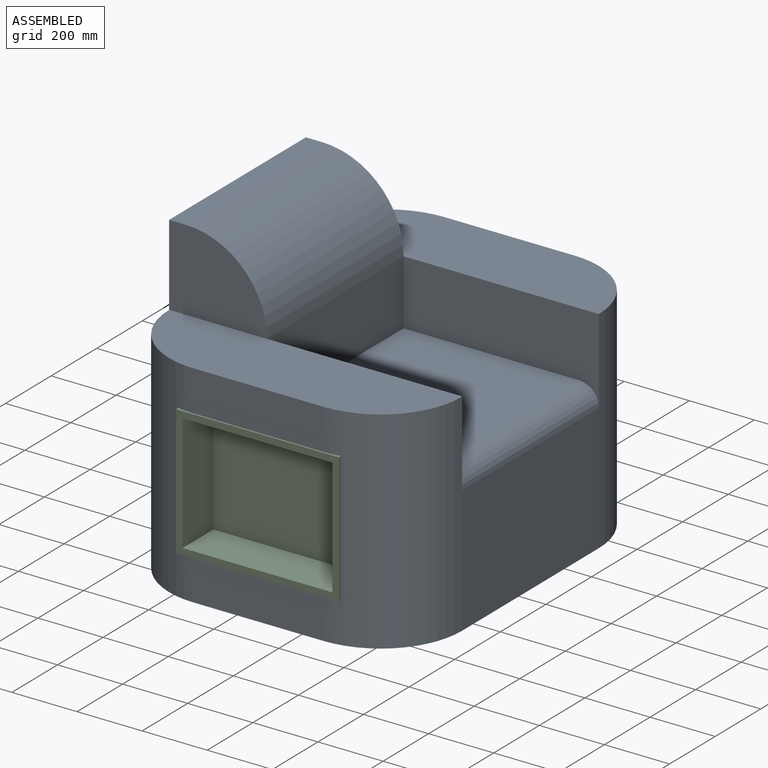
[diagram: assembled view]
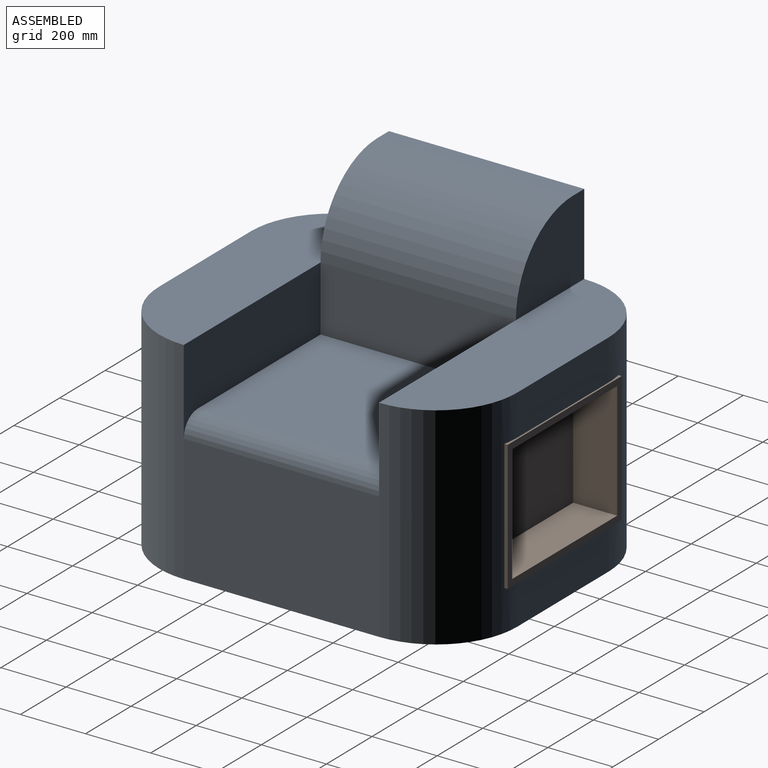
[diagram: assembled view, second angle]
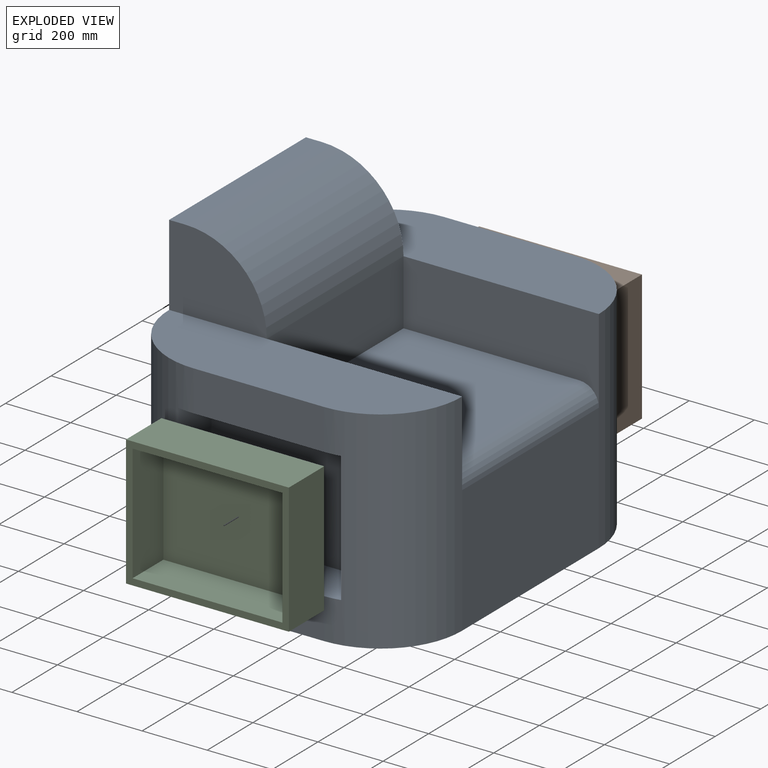
[diagram: exploded view]
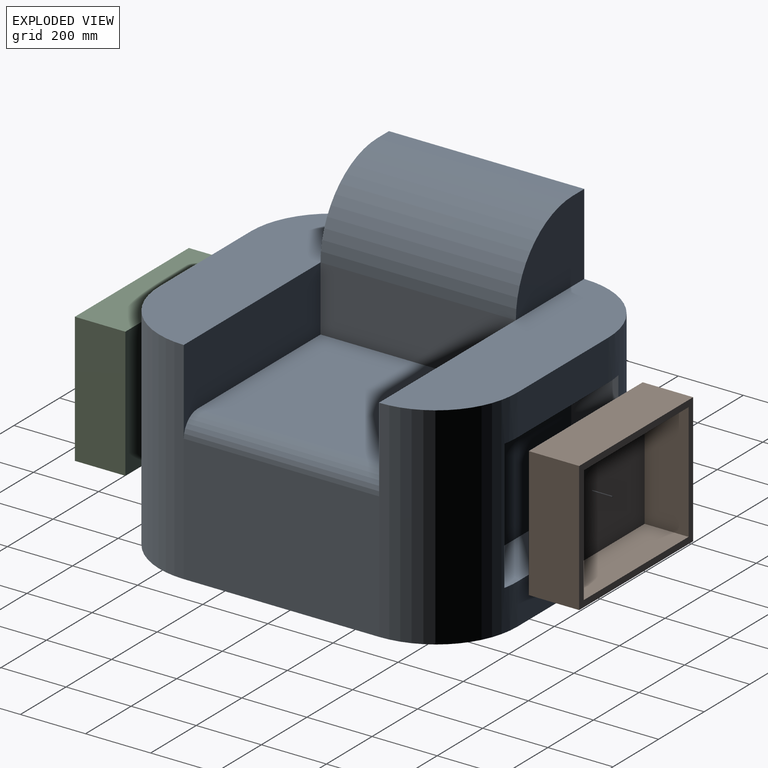
[diagram: exploded view, second angle]
ASSEMBLY  parts=3 mates=2
PART A: 32 faces, bbox 1100x900x900 mm
  f0: plane 600x390mm, normal (0,-1,0), area 234000mm2, adj f2,f4,f10,f22
  f1: plane 600x540mm, normal (0,0,1), area 324000mm2, adj f4,f5,f8,f20
  f2: plane 1100x900mm, normal (0,0,-1), area 936349.5mm2, adj f0,f3,f9,f10,f11,f21,f22,f23
  f3: plane 900x600mm, normal (0,1,0), area 540000mm2, adj f2,f6,f11,f19,f23,f31
  f4: cylinder r=60mm len=600mm, axis (1,0,0), area 56548.7mm2, adj f0,f1,f8,f20
  f5: plane 600x200mm, normal (0,-1,0), area 120000mm2, adj f1,f7,f8,f20
  f6: plane 600x50mm, normal (0,0,1), area 30000mm2, adj f3,f7,f19,f31
  f7: cylinder r=250mm len=600mm, axis (-1,0,0), area 235619.4mm2, adj f5,f6,f19,f31
  f8: plane 600x260mm, normal (1,0,0), area 120772.6mm2, adj f1,f4,f5,f10,f13
  f9: plane 400x125mm, normal (-1,0,0), area 50000mm2, adj f2,f10,f11,f16
  f10: cylinder r=250mm len=650mm, axis (0,0,-1), area 235118.6mm2, adj f0,f2,f8,f9,f12,f13,f14,f16
  f11: cylinder r=250mm len=650mm, axis (0,0,-1), area 235118.6mm2, adj f2,f3,f9,f12,f13,f14,f15,f16
  f12: plane 400x125mm, normal (-1,0,0), area 50000mm2, adj f10,f11,f13,f14
  f13: plane 900x250mm, normal (0,0,1), area 198174.8mm2, adj f8,f10,f11,f12,f19
  f14: plane 500x150mm, normal (0,0,-1), area 74832.3mm2, adj f10,f11,f12,f15,f17,f18
  f15: plane 400x144.95mm, normal (0,-1,0), area 57979.6mm2, adj f11,f14,f16,f18
  f16: plane 500x150mm, normal (0,0,1), area 74832.3mm2, adj f9,f10,f11,f15,f17,f18
  f17: plane 400x144.95mm, normal (0,1,0), area 57979.6mm2, adj f10,f14,f16,f18
  f18: plane 500x400mm, normal (-1,0,0), area 200000mm2, adj f14,f15,f16,f17
  f19: plane 300x250mm, normal (-1,0,0), area 61587.4mm2, adj f3,f6,f7,f13
  f20: plane 600x260mm, normal (-1,0,0), area 120772.6mm2, adj f1,f4,f5,f22,f25
  f21: plane 400x125mm, normal (1,0,0), area 50000mm2, adj f2,f22,f23,f28
  f22: cylinder r=250mm len=650mm, axis (0,0,-1), area 235118.6mm2, adj f0,f2,f20,f21,f24,f25,f26,f28
  f23: cylinder r=250mm len=650mm, axis (0,0,-1), area 235118.6mm2, adj f2,f3,f21,f24,f25,f26,f27,f28
  f24: plane 400x125mm, normal (1,0,0), area 50000mm2, adj f22,f23,f25,f26
  f25: plane 900x250mm, normal (0,0,1), area 198174.8mm2, adj f20,f22,f23,f24,f31
  f26: plane 500x150mm, normal (0,0,-1), area 74832.3mm2, adj f22,f23,f24,f27,f29,f30
  f27: plane 400x144.95mm, normal (0,-1,0), area 57979.6mm2, adj f23,f26,f28,f30
  f28: plane 500x150mm, normal (0,0,1), area 74832.3mm2, adj f21,f22,f23,f27,f29,f30
  f29: plane 400x144.95mm, normal (0,1,0), area 57979.6mm2, adj f22,f26,f28,f30
  f30: plane 500x400mm, normal (1,0,0), area 200000mm2, adj f26,f27,f28,f29
  f31: plane 300x250mm, normal (1,0,0), area 61587.4mm2, adj f3,f6,f7,f25
PART B: 11 faces, bbox 500x155x400 mm
  f0: plane 500x400mm, normal (0,-1,0), area 34400mm2, adj f1,f2,f3,f4,f6,f7,f8,f9
  f1: plane 400x155mm, normal (-1,0,0), area 62000mm2, adj f0,f2,f4,f5
  f2: plane 500x155mm, normal (0,0,-1), area 77500mm2, adj f0,f1,f3,f5
  f3: plane 400x155mm, normal (1,0,0), area 62000mm2, adj f0,f2,f4,f5
  f4: plane 500x155mm, normal (0,0,1), area 77500mm2, adj f0,f1,f3,f5
  f5: plane 500x400mm, normal (0,1,0), area 200000mm2, adj f1,f2,f3,f4
  f6: plane 360x135mm, normal (1,0,0), area 48600mm2, adj f0,f7,f9,f10
  f7: plane 460x135mm, normal (0,0,1), area 62100mm2, adj f0,f6,f8,f10
  f8: plane 360x135mm, normal (-1,0,0), area 48600mm2, adj f0,f7,f9,f10
  f9: plane 460x135mm, normal (0,0,-1), area 62100mm2, adj f0,f6,f8,f10
  f10: plane 460x360mm, normal (0,-1,0), area 165600mm2, adj f6,f7,f8,f9
PART C: same geometry as B
PLACE A rot(axis=(0,0,1),90deg) t=(-51.28,705.79,901.55)mm
PLACE B rot(axis=(1,0,0),180deg) t=(-751.28,1405.79,1426.55)mm
PLACE C t=(-751.28,605.79,1026.55)mm
MATE fastened A.f18 <-> C.f5  axis (0,-1,0) through (-501.28,605.79,1226.55)mm
MATE fastened A.f30 <-> B.f5  axis (0,1,0) through (-501.28,1405.79,1226.55)mm
